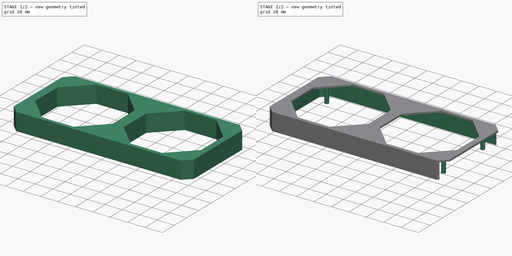
[diagram: build sequence overview — one tinted view per stage of 2, left to right]
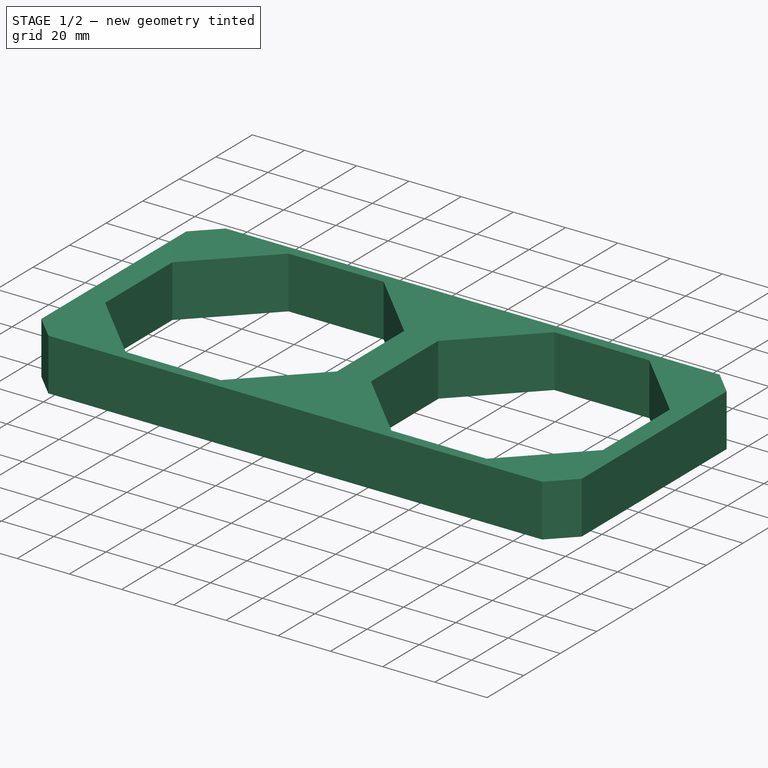
[diagram: stage 1 of 2 — iso view after this stage's code; geometry added in this stage tinted green]
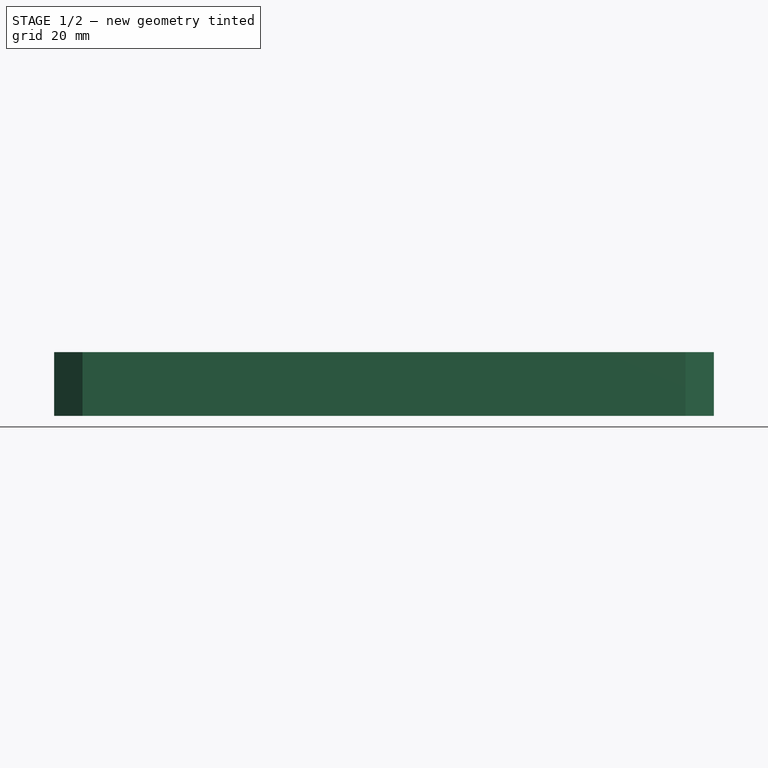
[diagram: stage 1 of 2 — front view after this stage's code; geometry added in this stage tinted green]
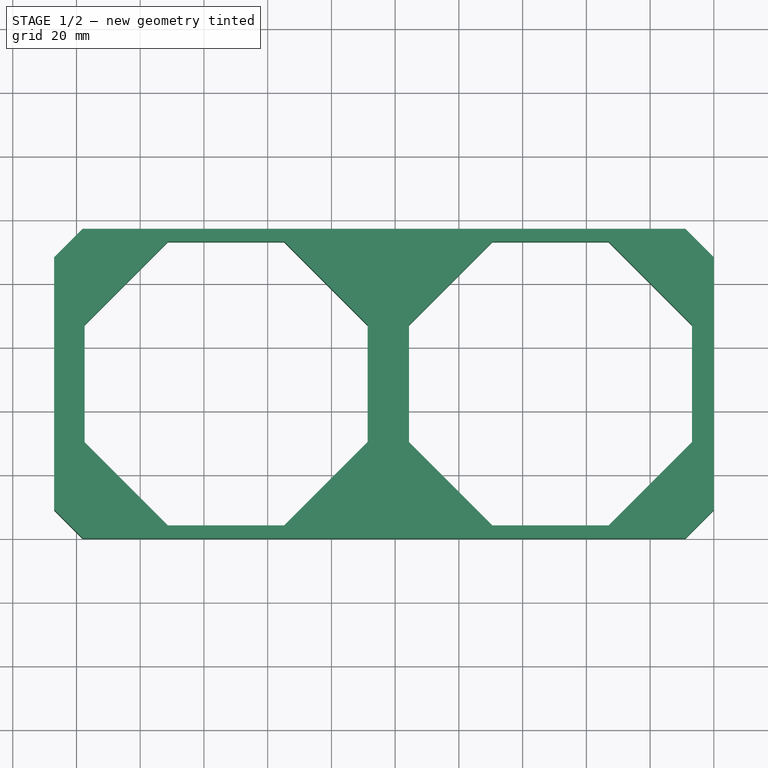
[diagram: stage 1 of 2 — top view after this stage's code; geometry added in this stage tinted green]
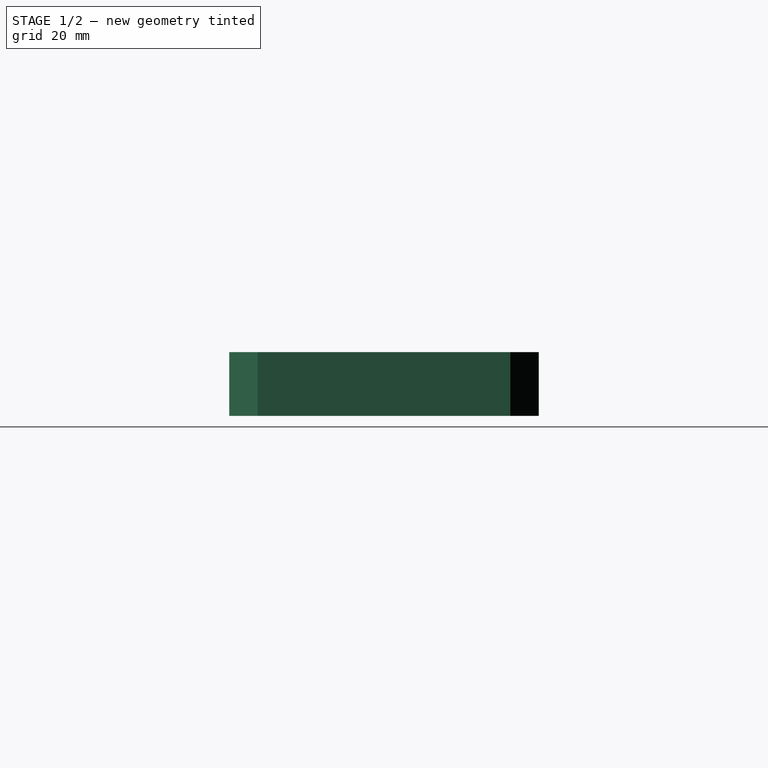
[diagram: stage 1 of 2 — right view after this stage's code; geometry added in this stage tinted green]
FCSTD DOCUMENT  (FreeCAD 0.21R33771 (Git))
Label: gpu-fan
License: All rights reserved
LicenseURL: http://en.wikipedia.org/wiki/All_rights_reserved
objects: Sketcher::SketchObject×4, PartDesign::Pad×2, PartDesign::Pocket×2, PartDesign::Body×1
note: 13 computed .brp shape members not serialized (recipe doc carries the construction recipe); baked Part::Feature solids carry a one-line shape summary decoded from their .brp

FEATURE [Sketcher::SketchObject] Sketch
  FullyConstrained = true
  MapMode = 5
  Support = -> [XY_Plane]
  sketch-geometry (12):
    g0: LineSegment StartX=-207 StartY=97.1 StartZ=0 EndX=0 EndY=97.1 EndZ=0
    g1: LineSegment StartX=0 StartY=97.1 StartZ=0 EndX=0 EndY=0 EndZ=0
    g2: LineSegment StartX=0 StartY=0 StartZ=0 EndX=-207 EndY=0 EndZ=0
    g3: LineSegment StartX=-207 StartY=0 StartZ=0 EndX=-207 EndY=97.1 EndZ=0
    g4: LineSegment StartX=-8.91089 StartY=97.1 StartZ=0 EndX=0 EndY=88.1891 EndZ=0
    g5: LineSegment StartX=0 StartY=8.91089 StartZ=0 EndX=-8.91089 EndY=0 EndZ=0
    g6: LineSegment StartX=-207 StartY=8.91089 StartZ=0 EndX=-198.089 EndY=0 EndZ=0
    g7: LineSegment StartX=-207 StartY=88.1891 StartZ=0 EndX=-198.089 EndY=97.1 EndZ=0
    g8: LineSegment StartX=-198.089 StartY=97.1 StartZ=0 EndX=-8.91089 EndY=97.1 EndZ=0
    g9: LineSegment StartX=-207 StartY=88.1891 StartZ=0 EndX=-207 EndY=8.91089 EndZ=0
    g10: LineSegment StartX=-198.089 StartY=0 StartZ=0 EndX=-8.91089 EndY=0 EndZ=0
    g11: LineSegment StartX=0 StartY=88.1891 StartZ=0 EndX=0 EndY=8.91089 EndZ=0
  constraints (36):
    c: Coincident(g0,g1)
    c: Coincident(g1,g2)
    c: Coincident(g2,g3)
    c: Coincident(g3,g0)
    c: Horizontal(g0)
    c: Horizontal(g2)
    c: Vertical(g1)
    c: Vertical(g3)
    c: DistanceX(g-1,g1) = 0
    c: DistanceY(g1,g-1) = 0
    c: DistanceY(g3,g3) = 97.1
    c: DistanceX(g0,g0) = 207
    c: PointOnObject(g4,g0)
    c: PointOnObject(g4,g1)
    c: PointOnObject(g5,g1)
    c: PointOnObject(g5,g2)
    c: PointOnObject(g6,g3)
    c: PointOnObject(g6,g2)
    c: PointOnObject(g7,g3)
    c: PointOnObject(g7,g0)
    c: Equal(g4,g6)
    c: Equal(g4,g5)
    c: Equal(g4,g7)
    c: Parallel(g4,g6)
    c: Perpendicular(g5,g4)
    c: Perpendicular(g7,g4)
    c: Angle(g0,g4) = 2.35619
    c: DistanceX(g4,g4) = 8.91089
    c: Coincident(g8,g7)
    c: Coincident(g8,g4)
    c: Coincident(g9,g7)
    c: Coincident(g9,g6)
    c: Coincident(g10,g6)
    c: Coincident(g10,g5)
    c: Coincident(g11,g4)
    c: Coincident(g11,g5)
FEATURE [PartDesign::Pad] Pad
  Direction = (0,0,1)
  Length = 20
  Length2 = 10
  Profile = -> Sketch
  ReferenceAxis = -> Sketch [N_Axis]
  Type = 0
FEATURE [Sketcher::SketchObject] Sketch001
  FullyConstrained = true
  MapMode = 5
  Placement = pos=(0,0,20) rot=(0,0,1;0rad)
  Support = -> [Pad]
  sketch-geometry (16):
    g0: LineSegment StartX=-95.65 StartY=66.925 StartZ=0 EndX=-95.65 EndY=30.175 EndZ=0
    g1: LineSegment StartX=-95.65 StartY=30.175 StartZ=0 EndX=-69.475 EndY=4 EndZ=0
    g2: LineSegment StartX=-69.475 StartY=4 StartZ=0 EndX=-33.025 EndY=4 EndZ=0
    g3: LineSegment StartX=-33.025 StartY=4 StartZ=0 EndX=-6.85 EndY=30.175 EndZ=0
    g4: LineSegment StartX=-6.85 StartY=30.175 StartZ=0 EndX=-6.85 EndY=66.925 EndZ=0
    g5: LineSegment StartX=-6.85 StartY=66.925 StartZ=0 EndX=-33.025 EndY=93.1 EndZ=0
    g6: LineSegment StartX=-33.025 StartY=93.1 StartZ=0 EndX=-69.475 EndY=93.1 EndZ=0
    g7: LineSegment StartX=-69.475 StartY=93.1 StartZ=0 EndX=-95.65 EndY=66.925 EndZ=0
    g8: LineSegment StartX=-197.45 StartY=66.925 StartZ=0 EndX=-197.45 EndY=30.175 EndZ=0
    g9: LineSegment StartX=-197.45 StartY=30.175 StartZ=0 EndX=-171.275 EndY=4 EndZ=0
    g10: LineSegment StartX=-171.275 StartY=4 StartZ=0 EndX=-134.825 EndY=4 EndZ=0
    g11: LineSegment StartX=-134.825 StartY=4 StartZ=0 EndX=-108.65 EndY=30.175 EndZ=0
    g12: LineSegment StartX=-108.65 StartY=30.175 StartZ=0 EndX=-108.65 EndY=66.925 EndZ=0
    g13: LineSegment StartX=-108.65 StartY=66.925 StartZ=0 EndX=-134.825 EndY=93.1 EndZ=0
    g14: LineSegment StartX=-134.825 StartY=93.1 StartZ=0 EndX=-171.275 EndY=93.1 EndZ=0
    g15: LineSegment StartX=-171.275 StartY=93.1 StartZ=0 EndX=-197.45 EndY=66.925 EndZ=0
  constraints (48):
    c: Vertical(g0)
    c: Coincident(g0,g1)
    c: Coincident(g1,g2)
    c: Horizontal(g2)
    c: Coincident(g2,g3)
    c: Coincident(g3,g4)
    c: Vertical(g4)
    c: Coincident(g4,g5)
    c: Coincident(g5,g6)
    c: Horizontal(g6)
    c: Coincident(g6,g7)
    c: Coincident(g7,g0)
    c: DistanceY(g4,g0) = 0
    c: DistanceY(g3,g0) = 0
    c: DistanceX(g0,g4) = 88.8
    c: DistanceX(g4,g-1) = 6.85
    c: DistanceY(g-1,g2) = 4
    c: Equal(g3,g1)
    c: Equal(g3,g5)
    c: Equal(g3,g7)
    c: Parallel(g3,g7)
    c: Perpendicular(g5,g3)
    c: Vertical(g8)
    c: Coincident(g8,g9)
    c: Coincident(g9,g10)
    c: Horizontal(g10)
    c: Coincident(g10,g11)
    c: Coincident(g11,g12)
    c: Vertical(g12)
    c: Coincident(g12,g13)
    c: Coincident(g13,g14)
    c: Horizontal(g14)
    c: Coincident(g14,g15)
    c: Coincident(g15,g8)
    c: DistanceY(g12,g8) = 0
    c: DistanceY(g11,g8) = 0
    c: DistanceX(g8,g12) = 88.8
    c: Equal(g11,g9)
    c: Equal(g11,g13)
    c: Equal(g11,g15)
    c: Parallel(g11,g15)
    c: Perpendicular(g13,g11)
    c: DistanceX(g12,g0) = 13
    c: DistanceY(g0,g12) = 0
    c: Equal(g0,g12)
    c: Equal(g14,g6)
    c: DistanceY(g0,g0) = 36.75
    c: DistanceY(g-1,g5) = 93.1
FEATURE [PartDesign::Pocket] Pocket
  BaseFeature = -> Pad
  Direction = (0,0,-1)
  Length = 20
  Length2 = 5
  Profile = -> Sketch001
  ReferenceAxis = -> Sketch001 [N_Axis]
  Type = 0
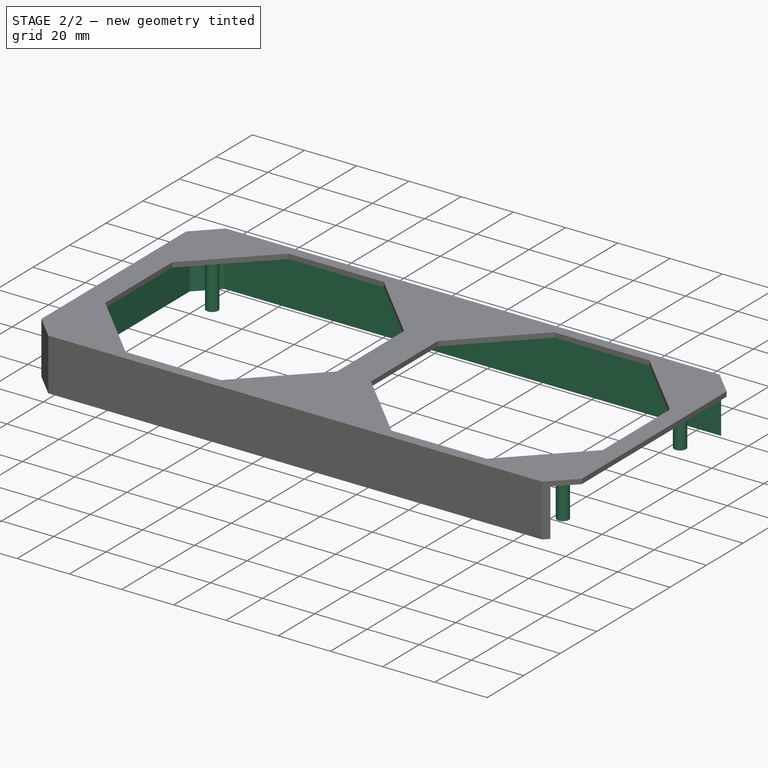
[diagram: stage 2 of 2 — iso view after this stage's code; geometry added in this stage tinted green]
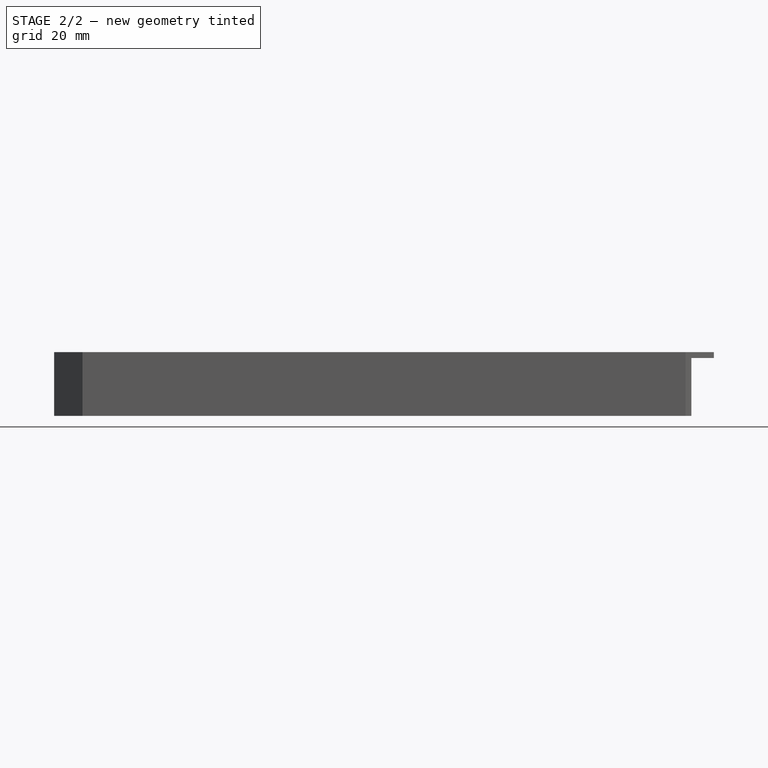
[diagram: stage 2 of 2 — front view after this stage's code; geometry added in this stage tinted green]
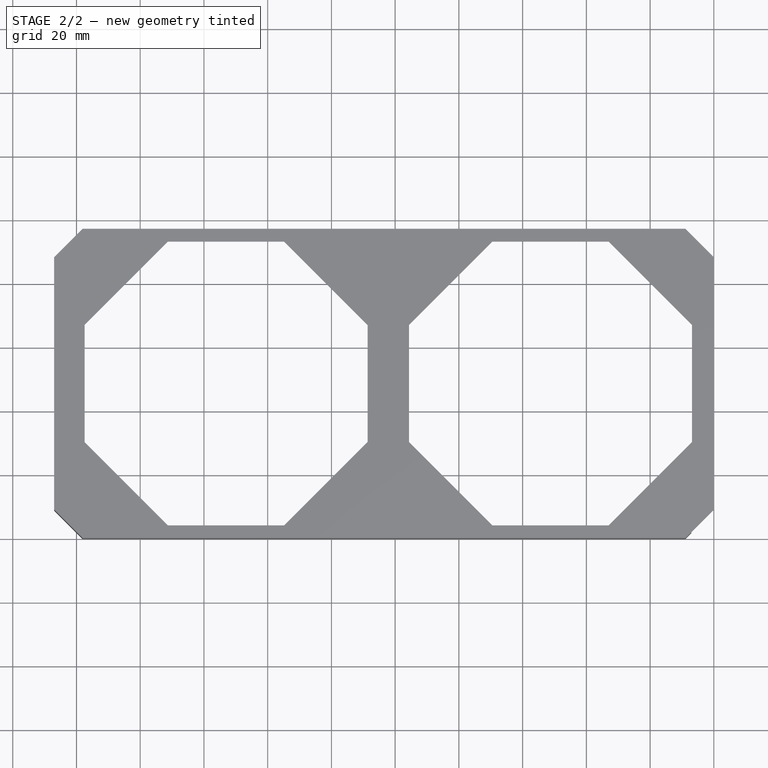
[diagram: stage 2 of 2 — top view after this stage's code; geometry added in this stage tinted green]
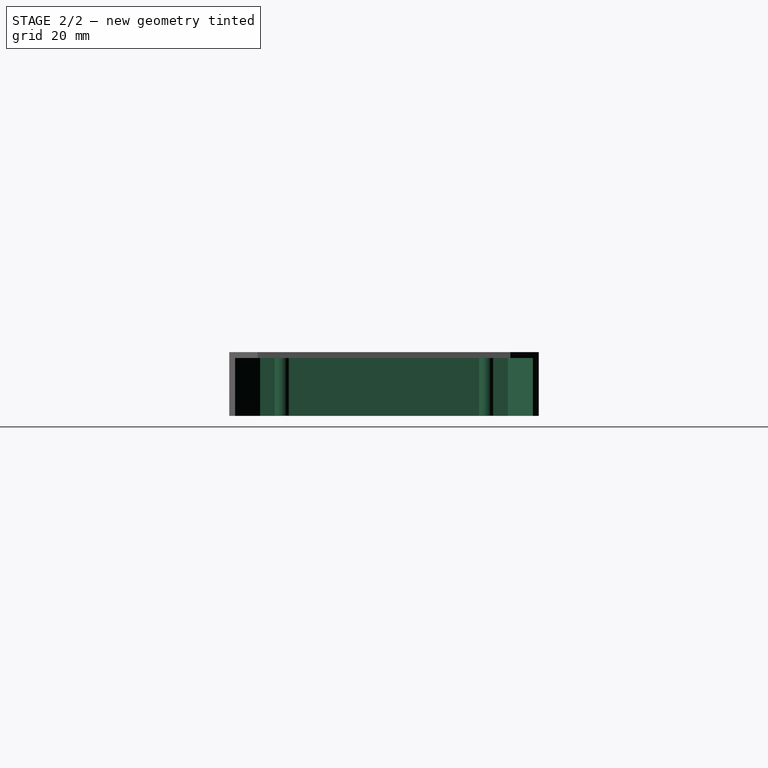
[diagram: stage 2 of 2 — right view after this stage's code; geometry added in this stage tinted green]
FEATURE [Sketcher::SketchObject] Sketch002
  FullyConstrained = true
  MapMode = 5
  Placement = pos=(0,0,0) rot=(1,0,0;3.14159rad)
  Support = -> [Pocket]
  sketch-geometry (12):
    g0: LineSegment StartX=-197.324 StartY=-1.85 StartZ=0 EndX=-205.15 EndY=-9.6763 EndZ=0
    g1: LineSegment StartX=-205.15 StartY=-9.6763 StartZ=0 EndX=-205.15 EndY=-87.4237 EndZ=0
    g2: LineSegment StartX=-205.15 StartY=-87.4237 StartZ=0 EndX=-197.324 EndY=-95.25 EndZ=0
    g3: LineSegment StartX=-197.324 StartY=-95.25 StartZ=0 EndX=7.29 EndY=-95.25 EndZ=0
    g4: LineSegment StartX=7.29 StartY=-95.25 StartZ=0 EndX=7.29 EndY=-1.85 EndZ=0
    g5: LineSegment StartX=7.29 StartY=-1.85 StartZ=0 EndX=-197.324 EndY=-1.85 EndZ=0
    g6: LineSegment StartX=-207 StartY=-8.91 StartZ=0 EndX=-207 EndY=-88.19 EndZ=0
    g7: LineSegment StartX=-207 StartY=-8.91 StartZ=0 EndX=-198.09 EndY=0 EndZ=0
    g8: LineSegment StartX=-207 StartY=-88.19 StartZ=0 EndX=-198.09 EndY=-97.1 EndZ=0
    g9: LineSegment StartX=-198.09 StartY=-97.1 StartZ=0 EndX=0 EndY=-97.1 EndZ=0
    g10: LineSegment StartX=-198.09 StartY=0 StartZ=0 EndX=0 EndY=0 EndZ=0
    g11: LineSegment StartX=-201.729 StartY=-3.63898 StartZ=0 EndX=-200.421 EndY=-4.94713 EndZ=0
  constraints (38):
    c: Coincident(g0,g1)
    c: Vertical(g1)
    c: Coincident(g1,g2)
    c: Coincident(g2,g3)
    c: Horizontal(g3)
    c: Coincident(g3,g4)
    c: Vertical(g4)
    c: Coincident(g4,g5)
    c: Coincident(g5,g0)
    c: Horizontal(g5)
    c: Angle(g0,g5) = 2.35619
    c: Angle(g3,g2) = 2.35619
    c: DistanceY(g4,g-1) = 1.85
    c: DistanceX(g0,g-1) = 205.15
    c: Vertical(g6)
    c: Coincident(g7,g6)
    c: Coincident(g8,g6)
    c: Coincident(g9,g8)
    c: PointOnObject(g9,g-2)
    c: Horizontal(g9)
    c: Coincident(g10,g7)
    c: PointOnObject(g10,g-2)
    c: Horizontal(g10)
    c: DistanceY(g6,g6) = 79.28
    c: DistanceY(g8,g7) = 97.1
    c: DistanceY(g-1,g10) = 0
    c: DistanceX(g6,g10) = 207
    c: Equal(g7,g8)
    c: Angle(g6,g7) = 2.35619
    c: Perpendicular(g8,g7)
    c: PointOnObject(g11,g7)
    c: PointOnObject(g11,g0)
    c: Perpendicular(g11,g0)
    c: Distance(g11) = 1.85
    c: Equal(g0,g2)
    c: DistanceY(g3,g10) = 95.25
    c: DistanceX(g10,g4) = 7.29
    c: Distance(g11,g0) = 4.38
FEATURE [PartDesign::Pocket] Pocket001
  BaseFeature = -> Pocket
  Direction = (0,0,1)
  Length = 18.15
  Length2 = 5
  Profile = -> Sketch002
  ReferenceAxis = -> Sketch002 [N_Axis]
  Type = 0
FEATURE [Sketcher::SketchObject] Sketch003
  FullyConstrained = false
  MapMode = 5
  Placement = pos=(0,0,18.15) rot=(1,0,0;3.14159rad)
  Support = -> [Pocket001]
  sketch-geometry (6):
    g0: Circle CenterX=-12.53 CenterY=-16.49 CenterZ=0 NormalX=0 NormalY=0 NormalZ=1 AngleXU=0 Radius=2.25
    g1: LineSegment StartX=21.44 StartY=-48.55 StartZ=0 EndX=-222.83 EndY=-48.55 EndZ=0
    g2: LineSegment StartX=-102.15 StartY=-31.6689 StartZ=0 EndX=-102.15 EndY=-74.0089 EndZ=0
    g3: Circle CenterX=-191.771 CenterY=-16.4927 CenterZ=0 NormalX=0 NormalY=0 NormalZ=1 AngleXU=0 Radius=2.25
    g4: Circle CenterX=-12.5289 CenterY=-80.6073 CenterZ=0 NormalX=0 NormalY=0 NormalZ=1 AngleXU=0 Radius=2.25
    g5: Circle CenterX=-191.771 CenterY=-80.6073 CenterZ=0 NormalX=0 NormalY=0 NormalZ=1 AngleXU=0 Radius=2.25
  constraints (13):
    c: Diameter(g0) = 4.5
    c: Horizontal(g1)
    c: DistanceX(g1,g1) = 244.27
    c: DistanceY(g1,g-1) = 48.55
    c: DistanceX(g-1,g1) = 21.44
    c: Vertical(g2)
    c: DistanceY(g2,g2) = 42.34
    c: DistanceX(g2,g-1) = 102.15
    c: Diameter(g3) = 4.5
    c: Diameter(g4) = 4.5
    c: Diameter(g5) = 4.5
    c: DistanceY(g0,g-1) = 16.49
    c: DistanceX(g0,g-1) = 12.53
FEATURE [PartDesign::Pad] Pad001
  BaseFeature = -> Pocket001
  Direction = (0,0,-1)
  Length = 18.05
  Length2 = 10
  Profile = -> Sketch003
  ReferenceAxis = -> Sketch003 [N_Axis]
  Type = 0
FEATURE [PartDesign::Body] Body  label="实体"
  Group = -> [Sketch,Pad,Sketch001,Pocket,Sketch002,Pocket001,Sketch003,Pad001]
  Origin = -> Origin
  Tip = -> Pad001
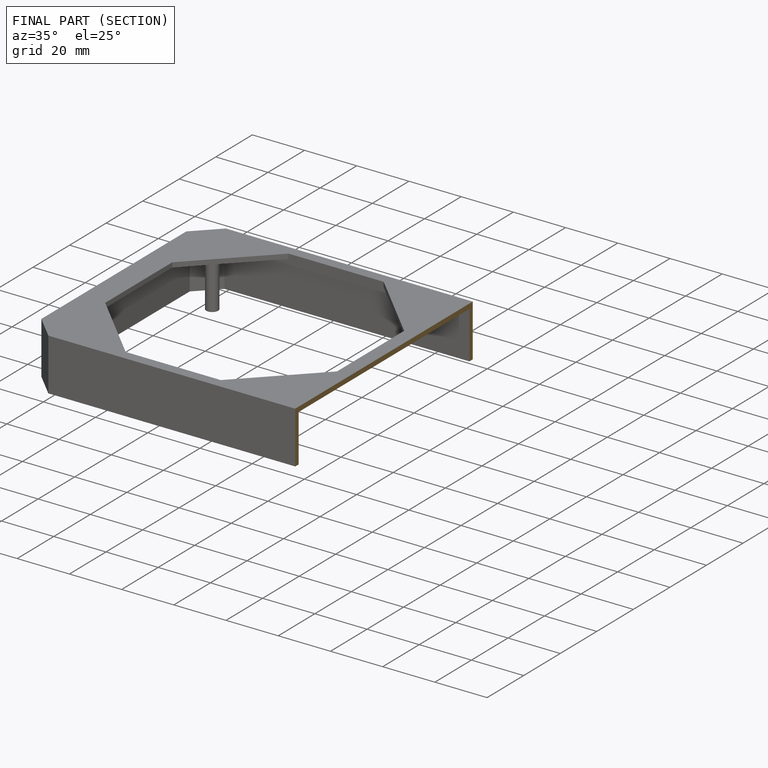
[diagram: finished part — half-section view (interior)]
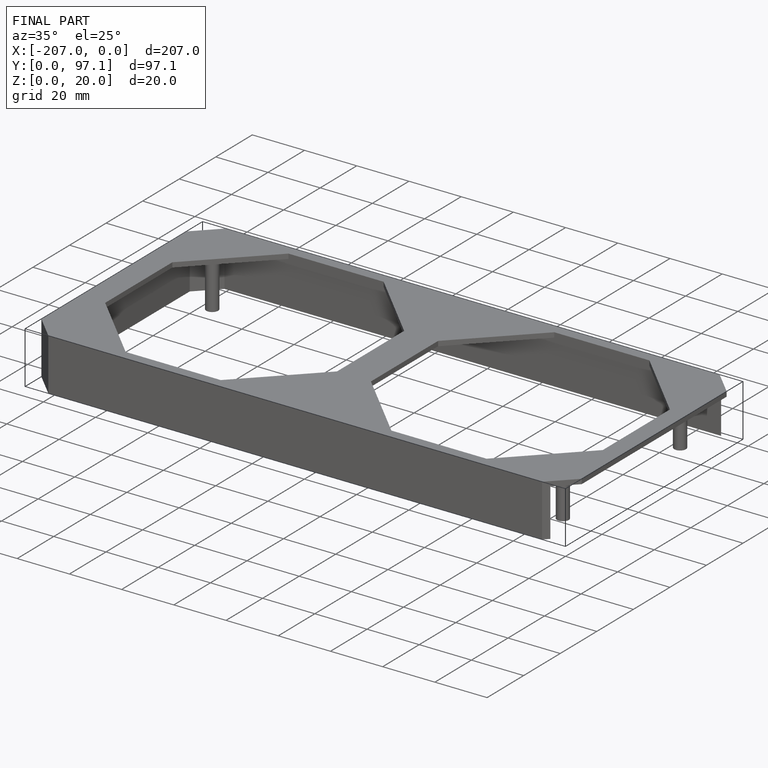
[diagram: finished part — iso view with bounding-box wireframe]
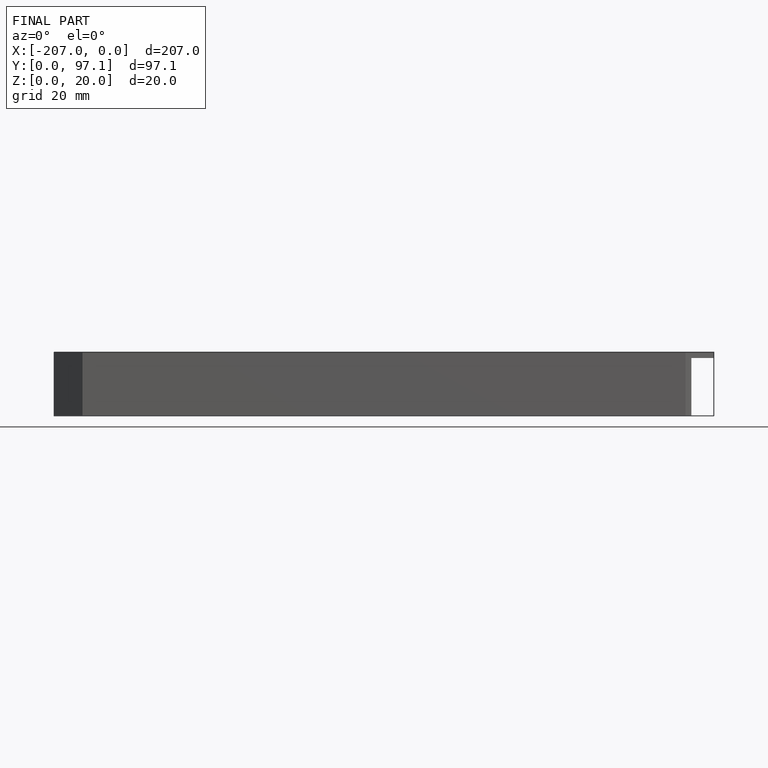
[diagram: finished part — front view with bounding-box wireframe]
